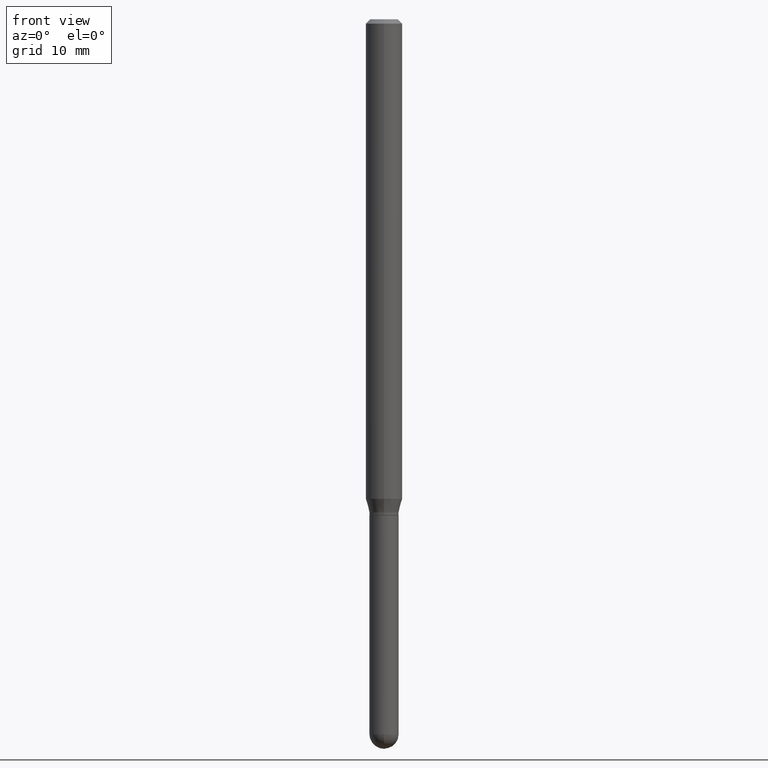
[diagram: clean part render]
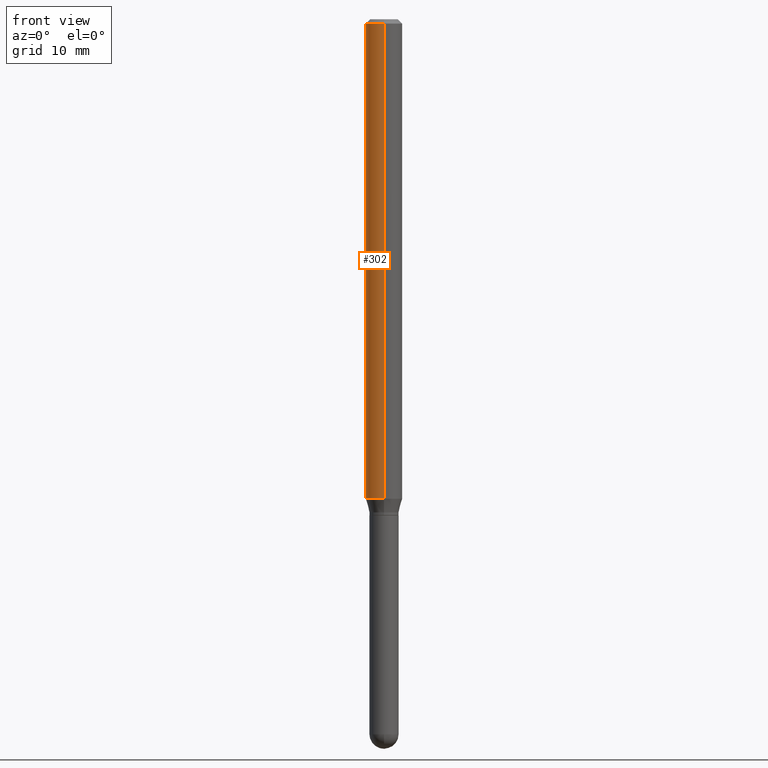
[diagram: same view with one face highlighted and labeled with its STEP entity id]
A machine part, front view. The second image highlights one B-rep face of the part: STEP entity #302.
In plain terms, the highlighted cylindrical surface (edge-blend (fillet) strip) has radius 1.5875 mm, axis along (-0, 0, 1).
Its self-contained STEP definition (entity closure, byte-faithful):
#18 = CARTESIAN_POINT ( 'NONE',  ( 4.018893665462696370E-29, -5.737531665056008006E-15, -1.643349364905387855 ) ) ;
#22 = CARTESIAN_POINT ( 'NONE',  ( 4.440892098500625669E-16, 0.06250000000000000000, -2.182102824414611697E-16 ) ) ;
#33 = ORIENTED_EDGE ( 'NONE', *, *, #284, .F. ) ;
#36 = EDGE_CURVE ( 'NONE', #297, #41, #479, .T. ) ;
#37 = EDGE_LOOP ( 'NONE', ( #33, #55, #315, #355 ) ) ;
#41 = VERTEX_POINT ( 'NONE', #435 ) ;
#55 = ORIENTED_EDGE ( 'NONE', *, *, #153, .T. ) ;
#56 = DIRECTION ( 'NONE',  ( -2.445550381001349235E-29, 3.491364519063378714E-15, 1.000000000000000000 ) ) ;
#60 = DIRECTION ( 'NONE',  ( -2.445550381001348954E-29, 3.491364519063378714E-15, 1.000000000000000000 ) ) ;
#70 = VECTOR ( 'NONE', #105, 39.37007874015748143 ) ;
#75 = DIRECTION ( 'NONE',  ( -6.982962677686265922E-15, -1.000000000000000000, 3.483106191921935554E-15 ) ) ;
#80 = VERTEX_POINT ( 'NONE', #171 ) ;
#105 = DIRECTION ( 'NONE',  ( -2.445550381001348954E-29, 3.491364519063378714E-15, 1.000000000000000000 ) ) ;
#113 = CARTESIAN_POINT ( 'NONE',  ( 3.668325571502026339E-31, -5.237046778595071055E-17, -0.01500000000000000812 ) ) ;
#148 = AXIS2_PLACEMENT_3D ( 'NONE', #113, #194, #75 ) ;
#153 = EDGE_CURVE ( 'NONE', #80, #297, #409, .T. ) ;
#157 = DIRECTION ( 'NONE',  ( -6.982962677686265922E-15, -1.000000000000000000, 3.491364519063378714E-15 ) ) ;
#171 = CARTESIAN_POINT ( 'NONE',  ( 4.440892098501028481E-16, 0.06249999999999429623, -1.643349364905388077 ) ) ;
#179 = LINE ( 'NONE', #22, #300 ) ;
#194 = DIRECTION ( 'NONE',  ( -2.445550381001349235E-29, 3.491364519063378714E-15, 1.000000000000000000 ) ) ;
#215 = CARTESIAN_POINT ( 'NONE',  ( 4.440892098501030453E-16, 0.06249999999999995143, -0.01500000000000022669 ) ) ;
#216 = AXIS2_PLACEMENT_3D ( 'NONE', #18, #56, #377 ) ;
#221 = CARTESIAN_POINT ( 'NONE',  ( 0.000000000000000000, 0.000000000000000000, 0.000000000000000000 ) ) ;
#239 = VERTEX_POINT ( 'NONE', #215 ) ;
#284 = EDGE_CURVE ( 'NONE', #80, #239, #179, .T. ) ;
#297 = VERTEX_POINT ( 'NONE', #501 ) ;
#300 = VECTOR ( 'NONE', #60, 39.37007874015748143 ) ;
#302 = ADVANCED_FACE ( 'NONE', ( #455 ), #309, .T. ) ;
#309 = CYLINDRICAL_SURFACE ( 'NONE', #422, 0.06250000000000000000 ) ;
#315 = ORIENTED_EDGE ( 'NONE', *, *, #36, .T. ) ;
#348 = DIRECTION ( 'NONE',  ( -2.445550381001349235E-29, 3.491364519063378714E-15, 1.000000000000000000 ) ) ;
#355 = ORIENTED_EDGE ( 'NONE', *, *, #376, .F. ) ;
#376 = EDGE_CURVE ( 'NONE', #239, #41, #399, .T. ) ;
#377 = DIRECTION ( 'NONE',  ( -6.982962677686265922E-15, -1.000000000000000000, 4.370956789862821150E-15 ) ) ;
#399 = CIRCLE ( 'NONE', #148, 0.06250000000000000000 ) ;
#409 = CIRCLE ( 'NONE', #216, 0.06250000000000000000 ) ;
#422 = AXIS2_PLACEMENT_3D ( 'NONE', #221, #348, #157 ) ;
#435 = CARTESIAN_POINT ( 'NONE',  ( -4.364351673553912750E-16, -0.06250000000000005551, -0.01499999999999979128 ) ) ;
#448 = CARTESIAN_POINT ( 'NONE',  ( -4.364351673553916201E-16, -0.06250000000000000000, 2.182102824414611697E-16 ) ) ;
#455 = FACE_OUTER_BOUND ( 'NONE', #37, .T. ) ;
#479 = LINE ( 'NONE', #448, #70 ) ;
#501 = CARTESIAN_POINT ( 'NONE',  ( -4.364351673553512403E-16, -0.06250000000000570377, -1.643349364905387633 ) ) ;